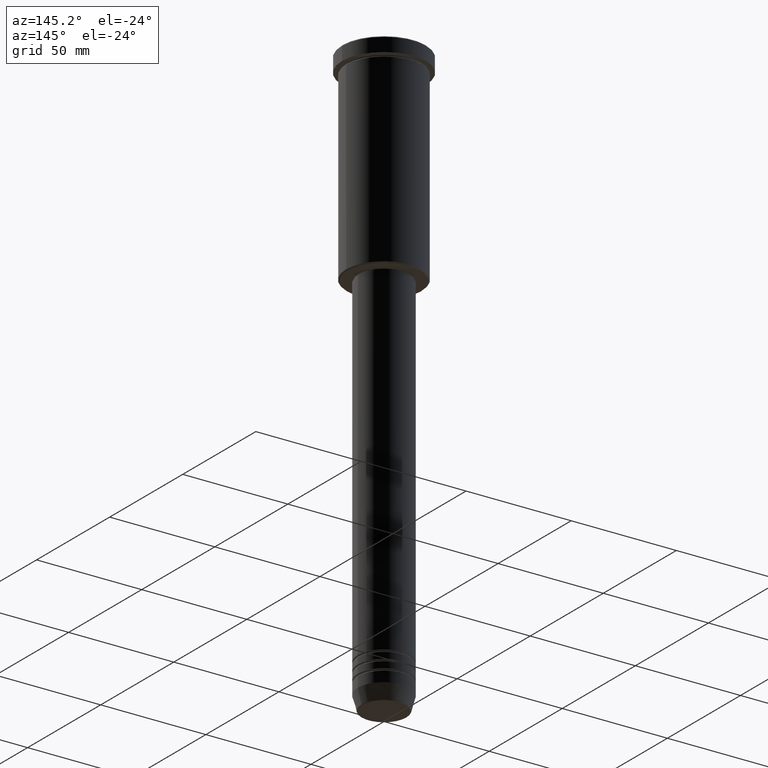
[diagram: clean part render]
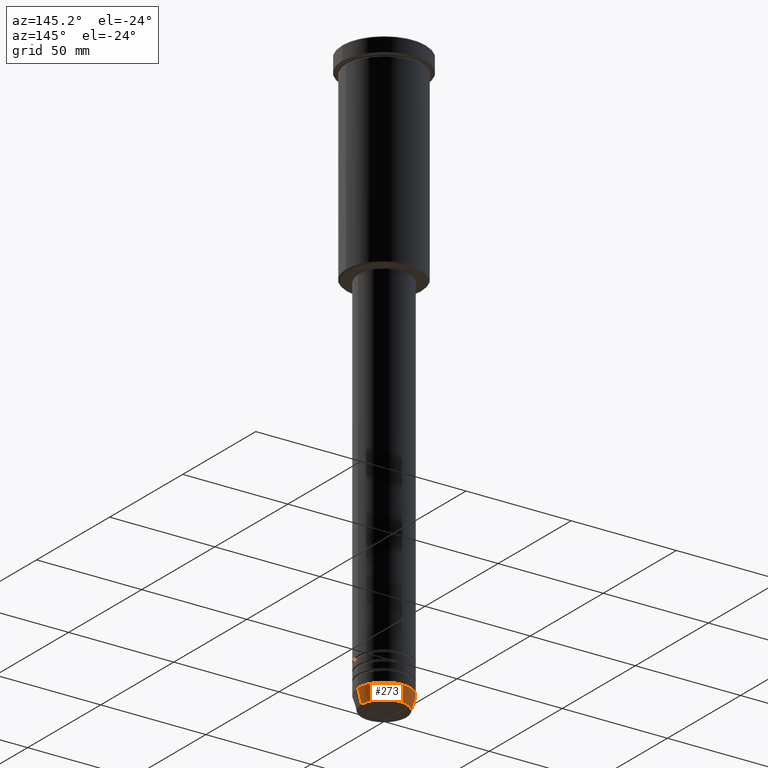
[diagram: same view with one face highlighted and labeled with its STEP entity id]
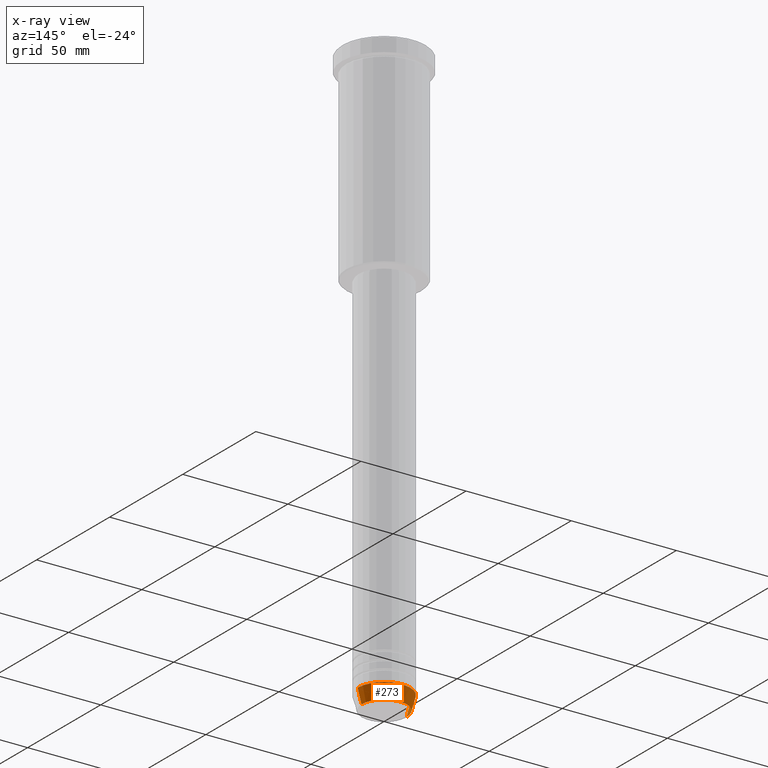
[diagram: x-ray of the same camera — body ghosted, the highlighted face saturated]
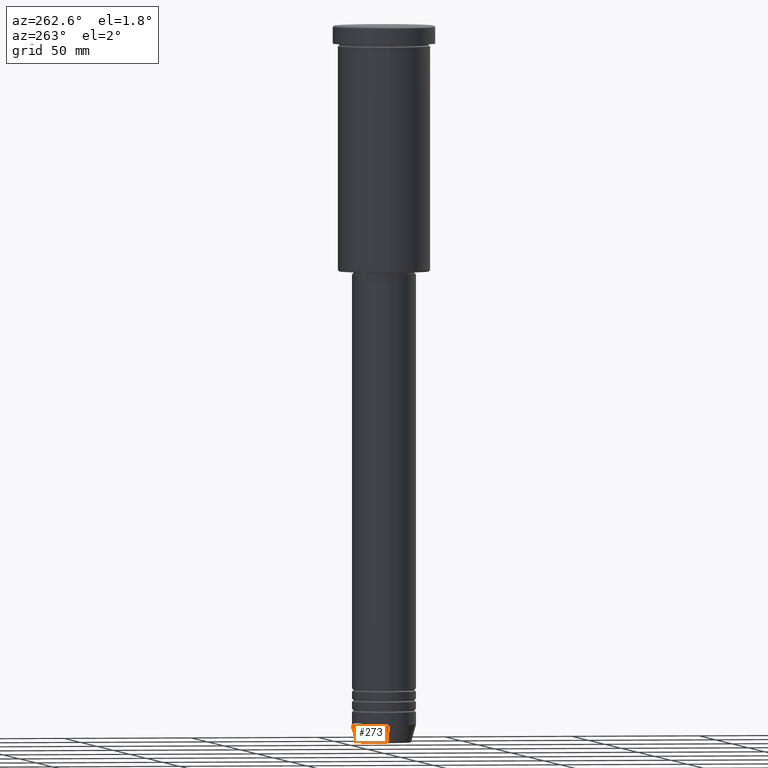
[diagram: same view with one face highlighted and labeled with its STEP entity id]
A machine part, auxiliary view. The second image highlights one B-rep face of the part: STEP entity #273.
The next image is the same camera in x-ray: the body ghosted, the highlighted face saturated — about 0% of this face is hidden behind the body in this view.
A second angle (auxiliary view) of the same face is appended — the face is thin or edge-on in the first view.
In plain terms, the highlighted conical surface has half-angle 15 deg.
Its self-contained STEP definition (entity closure, byte-faithful):
#73 = CARTESIAN_POINT ( 'NONE',  ( 0.000000000000000000, 0.000000000000000000, -273.0000000000000000 ) ) ;
#152 = CARTESIAN_POINT ( 'NONE',  ( -12.50000000000000000, 1.530808498934191521E-15, -273.0000000000000000 ) ) ;
#161 = DIRECTION ( 'NONE',  ( 0.2588190451025213501, 0.000000000000000000, 0.9659258262890680902 ) ) ;
#174 = ORIENTED_EDGE ( 'NONE', *, *, #1053, .F. ) ;
#207 = CONICAL_SURFACE ( 'NONE', #810, 12.50000000000000000, 0.2617993877991500740 ) ;
#256 = CARTESIAN_POINT ( 'NONE',  ( 0.000000000000000000, 0.000000000000000000, -279.6294095225512706 ) ) ;
#273 = ADVANCED_FACE ( 'NONE', ( #1167 ), #207, .T. ) ;
#299 = EDGE_CURVE ( 'NONE', #600, #928, #853, .T. ) ;
#303 = VERTEX_POINT ( 'NONE', #1148 ) ;
#312 = CARTESIAN_POINT ( 'NONE',  ( 12.50000000000000000, 0.000000000000000000, -273.0000000000000000 ) ) ;
#353 = EDGE_CURVE ( 'NONE', #303, #928, #1060, .T. ) ;
#369 = ORIENTED_EDGE ( 'NONE', *, *, #353, .T. ) ;
#410 = LINE ( 'NONE', #698, #634 ) ;
#533 = DIRECTION ( 'NONE',  ( 1.000000000000000000, 0.000000000000000000, 0.000000000000000000 ) ) ;
#600 = VERTEX_POINT ( 'NONE', #312 ) ;
#601 = ORIENTED_EDGE ( 'NONE', *, *, #794, .T. ) ;
#634 = VECTOR ( 'NONE', #161, 1000.000000000000000 ) ;
#669 = EDGE_LOOP ( 'NONE', ( #601, #369, #847, #174 ) ) ;
#698 = CARTESIAN_POINT ( 'NONE',  ( 12.50000000000000000, 0.000000000000000000, -273.0000000000000000 ) ) ;
#704 = CARTESIAN_POINT ( 'NONE',  ( 0.000000000000000000, 0.000000000000000000, -273.0000000000000000 ) ) ;
#719 = AXIS2_PLACEMENT_3D ( 'NONE', #73, #975, #874 ) ;
#794 = EDGE_CURVE ( 'NONE', #993, #303, #1176, .T. ) ;
#797 = DIRECTION ( 'NONE',  ( -0.2588190451025213501, 3.169619151431772337E-17, 0.9659258262890680902 ) ) ;
#803 = DIRECTION ( 'NONE',  ( -0.000000000000000000, -0.000000000000000000, 1.000000000000000000 ) ) ;
#810 = AXIS2_PLACEMENT_3D ( 'NONE', #704, #803, #878 ) ;
#823 = CARTESIAN_POINT ( 'NONE',  ( 10.72365507213719127, 0.000000000000000000, -279.6294095225512706 ) ) ;
#847 = ORIENTED_EDGE ( 'NONE', *, *, #299, .F. ) ;
#853 = CIRCLE ( 'NONE', #719, 12.50000000000000000 ) ;
#874 = DIRECTION ( 'NONE',  ( 1.000000000000000000, 0.000000000000000000, 0.000000000000000000 ) ) ;
#878 = DIRECTION ( 'NONE',  ( 1.000000000000000000, 0.000000000000000000, 0.000000000000000000 ) ) ;
#921 = VECTOR ( 'NONE', #797, 1000.000000000000000 ) ;
#928 = VERTEX_POINT ( 'NONE', #1017 ) ;
#961 = AXIS2_PLACEMENT_3D ( 'NONE', #256, #1081, #533 ) ;
#975 = DIRECTION ( 'NONE',  ( -0.000000000000000000, -0.000000000000000000, 1.000000000000000000 ) ) ;
#993 = VERTEX_POINT ( 'NONE', #823 ) ;
#1017 = CARTESIAN_POINT ( 'NONE',  ( -12.50000000000000000, 1.530808498934191521E-15, -273.0000000000000000 ) ) ;
#1053 = EDGE_CURVE ( 'NONE', #993, #600, #410, .T. ) ;
#1060 = LINE ( 'NONE', #152, #921 ) ;
#1081 = DIRECTION ( 'NONE',  ( -0.000000000000000000, -0.000000000000000000, 1.000000000000000000 ) ) ;
#1148 = CARTESIAN_POINT ( 'NONE',  ( -10.72365507213719127, 1.422038742429750516E-15, -279.6294095225512706 ) ) ;
#1167 = FACE_OUTER_BOUND ( 'NONE', #669, .T. ) ;
#1176 = CIRCLE ( 'NONE', #961, 10.72365507213719127 ) ;